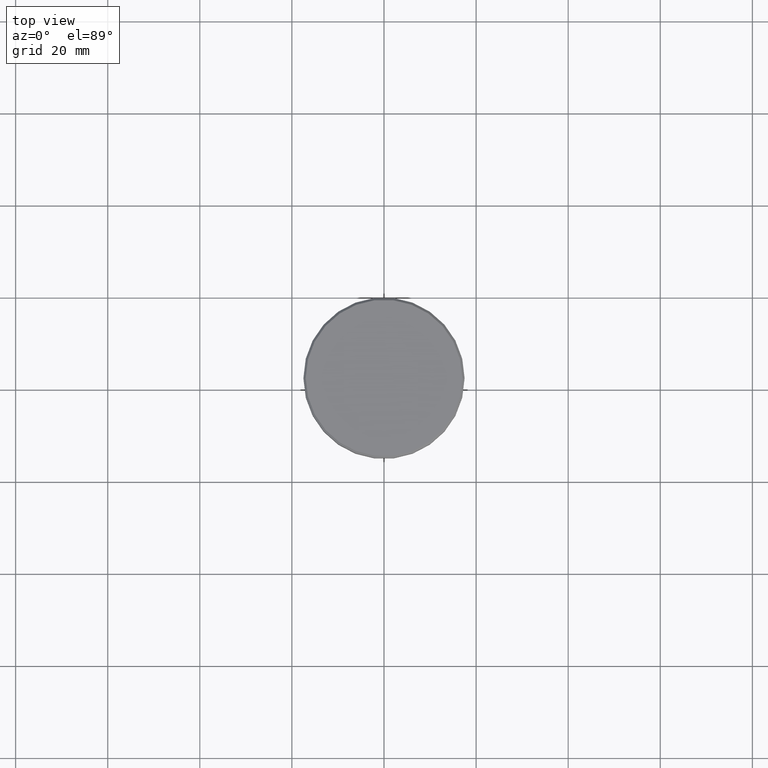
[diagram: clean part render]
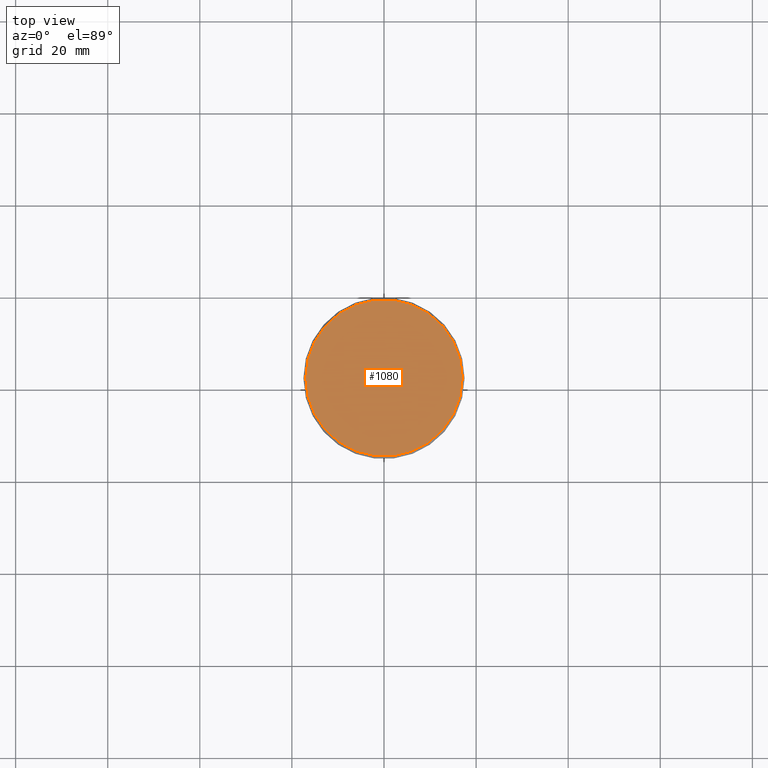
[diagram: same view with one face highlighted and labeled with its STEP entity id]
A machine part, top view. The second image highlights one B-rep face of the part: STEP entity #1080.
In plain terms, the highlighted planar face has unit normal (0, -0, 1).
Its self-contained STEP definition (entity closure, byte-faithful):
#18 = EDGE_LOOP ( 'NONE', ( #715, #662 ) ) ;
#58 = DIRECTION ( 'NONE',  ( 1.000000000000000000, 0.000000000000000000, 0.000000000000000000 ) ) ;
#167 = DIRECTION ( 'NONE',  ( -0.000000000000000000, -0.000000000000000000, 1.000000000000000000 ) ) ;
#201 = EDGE_CURVE ( 'NONE', #856, #630, #1137, .T. ) ;
#202 = CARTESIAN_POINT ( 'NONE',  ( 0.000000000000000000, 0.000000000000000000, 0.000000000000000000 ) ) ;
#220 = AXIS2_PLACEMENT_3D ( 'NONE', #202, #923, #665 ) ;
#284 = FACE_OUTER_BOUND ( 'NONE', #18, .T. ) ;
#338 = AXIS2_PLACEMENT_3D ( 'NONE', #974, #167, #58 ) ;
#449 = CIRCLE ( 'NONE', #338, 17.00000000000004263 ) ;
#595 = CARTESIAN_POINT ( 'NONE',  ( 17.00000000000004263, 2.112515728529187222E-15, 0.000000000000000000 ) ) ;
#623 = CARTESIAN_POINT ( 'NONE',  ( -17.00000000000004263, 0.000000000000000000, 0.000000000000000000 ) ) ;
#630 = VERTEX_POINT ( 'NONE', #623 ) ;
#660 = CARTESIAN_POINT ( 'NONE',  ( 0.000000000000000000, 0.000000000000000000, 0.000000000000000000 ) ) ;
#662 = ORIENTED_EDGE ( 'NONE', *, *, #201, .T. ) ;
#665 = DIRECTION ( 'NONE',  ( 1.000000000000000000, 0.000000000000000000, 0.000000000000000000 ) ) ;
#715 = ORIENTED_EDGE ( 'NONE', *, *, #899, .T. ) ;
#828 = AXIS2_PLACEMENT_3D ( 'NONE', #660, #924, #920 ) ;
#856 = VERTEX_POINT ( 'NONE', #595 ) ;
#899 = EDGE_CURVE ( 'NONE', #630, #856, #449, .T. ) ;
#920 = DIRECTION ( 'NONE',  ( 1.000000000000000000, 0.000000000000000000, 0.000000000000000000 ) ) ;
#923 = DIRECTION ( 'NONE',  ( 0.000000000000000000, -0.000000000000000000, 1.000000000000000000 ) ) ;
#924 = DIRECTION ( 'NONE',  ( -0.000000000000000000, -0.000000000000000000, 1.000000000000000000 ) ) ;
#974 = CARTESIAN_POINT ( 'NONE',  ( 0.000000000000000000, 0.000000000000000000, 0.000000000000000000 ) ) ;
#1029 = PLANE ( 'NONE',  #220 ) ;
#1080 = ADVANCED_FACE ( 'NONE', ( #284 ), #1029, .T. ) ;
#1137 = CIRCLE ( 'NONE', #828, 17.00000000000004263 ) ;